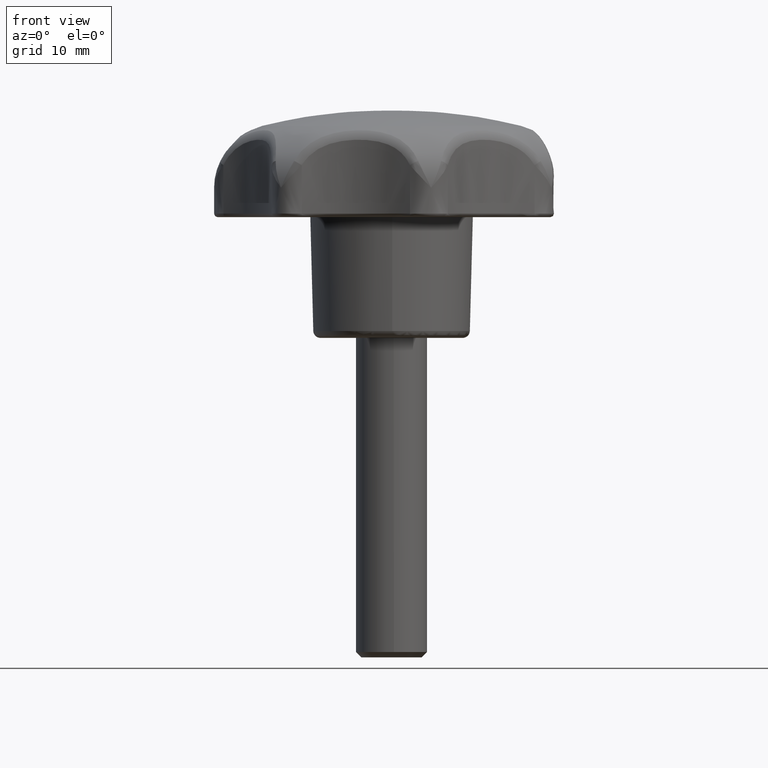
[diagram: clean part render]
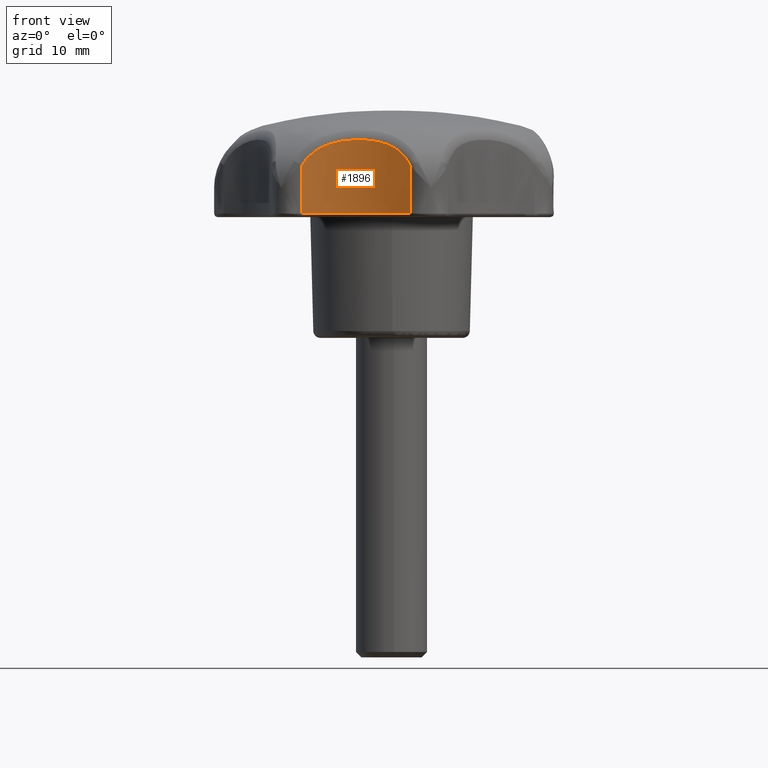
[diagram: same view with one face highlighted and labeled with its STEP entity id]
A machine part, front view. The second image highlights one B-rep face of the part: STEP entity #1896.
In plain terms, the highlighted face is a freeform B-spline surface patch.
Its self-contained STEP definition (entity closure, byte-faithful):
#1359=CARTESIAN_POINT('',(2.601986538722750,-23.697360399521848,17.500000000000000));
#1360=VERTEX_POINT('',#1359);
#1438=CARTESIAN_POINT('',(-12.626206854968320,-20.221624590713802,17.500000000000000));
#1439=VERTEX_POINT('',#1438);
#1466=CARTESIAN_POINT('',(-12.626206854968339,-20.221624590713791,17.500000000000000));
#1467=CARTESIAN_POINT('',(-4.175197073845636,-18.292736733996367,17.499999999999996));
#1468=CARTESIAN_POINT('',(2.601986538722749,-23.697360399521830,17.500000000000000));
#1476=(BOUNDED_CURVE()B_SPLINE_CURVE(2,(#1466,#1467,#1468),.UNSPECIFIED.,.F.,.U.)CURVE()GEOMETRIC_REPRESENTATION_ITEM()QUASI_UNIFORM_CURVE()RATIONAL_B_SPLINE_CURVE((1.0,0.900968865738790,1.0))REPRESENTATION_ITEM(''));
#1477=EDGE_CURVE('',#1439,#1360,#1476,.T.);
#1806=CARTESIAN_POINT('',(3.197564527767768,-24.193672375755064,28.162287431199484));
#1807=CARTESIAN_POINT('',(3.197564527767768,-24.193672375755064,17.233442814220009));
#1808=CARTESIAN_POINT('',(-4.077648753128497,-17.860643864169862,28.162287431199484));
#1809=CARTESIAN_POINT('',(-4.077648753128497,-17.860643864169862,17.233442814220012));
#1810=CARTESIAN_POINT('',(-13.379926049038454,-20.410862584413060,28.162287431199474));
#1811=CARTESIAN_POINT('',(-13.379926049038454,-20.410862584413060,17.233442814220012));
#1819=(BOUNDED_SURFACE()B_SPLINE_SURFACE(1,2,((#1806,#1808,#1810),(#1807,#1809,#1811)),.UNSPECIFIED.,.F.,.F.,.U.)B_SPLINE_SURFACE_WITH_KNOTS((2,2),(3,3),(0.0,10.928844616979470),(0.0,18.075234231265810),.UNSPECIFIED.)GEOMETRIC_REPRESENTATION_ITEM()RATIONAL_B_SPLINE_SURFACE(((0.999857993444966,0.880209342027575,0.997383405088179),(0.999857993444966,0.880209342027575,0.997383405088179)))REPRESENTATION_ITEM('')SURFACE());
#1820=CARTESIAN_POINT('',(2.601986538722750,-23.697360399521848,24.301413324988498));
#1821=VERTEX_POINT('',#1820);
#1822=CARTESIAN_POINT('',(2.601986538722750,-23.697360399521848,24.301413324988498));
#1823=CARTESIAN_POINT('',(2.601986538722750,-23.697360399521848,17.500000000000000));
#1824=QUASI_UNIFORM_CURVE('',1,(#1822,#1823),.UNSPECIFIED.,.F.,.U.);
#1825=EDGE_CURVE('',#1821,#1360,#1824,.T.);
#1826=ORIENTED_EDGE('',*,*,#1825,.F.);
#1827=CARTESIAN_POINT('',(-12.626206854968320,-20.221624590713802,24.301414511253551));
#1828=VERTEX_POINT('',#1827);
#1829=CARTESIAN_POINT('',(2.601986538722780,-23.697360399521848,24.301413324988498));
#1830=CARTESIAN_POINT('',(2.525173305434896,-23.636103889120790,24.470153435246200));
#1831=CARTESIAN_POINT('',(2.441912570885129,-23.570729036469508,24.633567149480658));
#1832=CARTESIAN_POINT('',(2.307094409091785,-23.467051781083470,24.870796667449170));
#1833=CARTESIAN_POINT('',(2.260498246619084,-23.431556083043809,24.948556409714939));
#1834=CARTESIAN_POINT('',(2.163923727335634,-23.358778059641800,25.101441339767220));
#1835=CARTESIAN_POINT('',(2.113863531816334,-23.321436652562909,25.176671656558799));
#1836=CARTESIAN_POINT('',(1.856903055077218,-23.131940820677940,25.543457534657559));
#1837=CARTESIAN_POINT('',(1.628986902787737,-22.970600499436781,25.809008234550610));
#1838=CARTESIAN_POINT('',(1.253461360435123,-22.719711302053440,26.169135892001918));
#1839=CARTESIAN_POINT('',(1.122659926157532,-22.634592282021039,26.282788800130831));
#1840=CARTESIAN_POINT('',(0.917880496015854,-22.505350176507989,26.443988339302020));
#1841=CARTESIAN_POINT('',(0.848119503561027,-22.461965361419161,26.496224503844989));
#1842=CARTESIAN_POINT('',(0.706010390701632,-22.374970911720041,26.597431427344951));
#1843=CARTESIAN_POINT('',(0.634023326539733,-22.331581152457339,26.646151041490661));
#1844=CARTESIAN_POINT('',(0.269529426570453,-22.115409423761850,26.880825521345120));
#1845=CARTESIAN_POINT('',(-0.036619427516632,-21.945004633831090,27.040134313167851));
#1846=CARTESIAN_POINT('',(-0.516149190283915,-21.697165401885659,27.244233358440368));
#1847=CARTESIAN_POINT('',(-0.679383435646572,-21.615837836301260,27.306431155895812));
#1848=CARTESIAN_POINT('',(-0.929180737684443,-21.496204748887401,27.391765265359268));
#1849=CARTESIAN_POINT('',(-1.013271129296481,-21.456719720146818,27.418881794141640));
#1850=CARTESIAN_POINT('',(-1.183081377496806,-21.378602567197021,27.470577729216249));
#1851=CARTESIAN_POINT('',(-1.268943429046346,-21.339908498464620,27.495194135121860));
#1852=CARTESIAN_POINT('',(-1.700223999777679,-21.149634319071449,27.611668764454919));
#1853=CARTESIAN_POINT('',(-2.051279189134882,-21.007707663221250,27.683929884793930));
#1854=CARTESIAN_POINT('',(-2.764584306502059,-20.745380854309129,27.796212785887779));
#1855=CARTESIAN_POINT('',(-3.126834537469450,-20.624974212550459,27.836214436910769));
#1856=CARTESIAN_POINT('',(-3.678330002543448,-20.461125087079591,27.875954507550340));
#1857=CARTESIAN_POINT('',(-3.863519021955770,-20.409301945953100,27.885792274636820));
#1858=CARTESIAN_POINT('',(-4.236614494651360,-20.311350710660339,27.898920995418830));
#1859=CARTESIAN_POINT('',(-4.424678561151737,-20.265186642885290,27.902212271487389));
#1860=CARTESIAN_POINT('',(-4.991997550344561,-20.135643041038481,27.902270118827531));
#1861=CARTESIAN_POINT('',(-5.371118144173472,-20.061925550305610,27.889380645131300));
#1862=CARTESIAN_POINT('',(-6.130971567657094,-19.939210544872211,27.836310002270029));
#1863=CARTESIAN_POINT('',(-6.511705174588911,-19.890217302835040,27.796130300395639));
#1864=CARTESIAN_POINT('',(-7.083632762729550,-19.835062652026611,27.711045649539770));
#1865=CARTESIAN_POINT('',(-7.274829635548976,-19.819718652379080,27.678416942368589));
#1866=CARTESIAN_POINT('',(-7.653818730917052,-19.795318064362519,27.604419463236962));
#1867=CARTESIAN_POINT('',(-7.841909574980833,-19.786219620157649,27.563024031415551));
#1868=CARTESIAN_POINT('',(-8.401532612158528,-19.767792462648810,27.424282541474032));
#1869=CARTESIAN_POINT('',(-8.768445216492294,-19.767344996783631,27.312474511467489));
#1870=CARTESIAN_POINT('',(-9.307295780105552,-19.782524117273748,27.108739200394421));
#1871=CARTESIAN_POINT('',(-9.484985903328521,-19.790222823071250,27.034801706897490));
#1872=CARTESIAN_POINT('',(-9.748271202772683,-19.805455604860249,26.913736025240429));
#1873=CARTESIAN_POINT('',(-9.835490713065308,-19.811147012818090,26.871685660837041));
#1874=CARTESIAN_POINT('',(-10.008776813553530,-19.823707538312899,26.783981533463660));
#1875=CARTESIAN_POINT('',(-10.094675990227170,-19.830567183134530,26.738402486647981));
#1876=CARTESIAN_POINT('',(-10.517472870366291,-19.867310090610630,26.503118351782529));
#1877=CARTESIAN_POINT('',(-10.836973574677270,-19.904718607050409,26.289985973339640));
#1878=CARTESIAN_POINT('',(-11.285655893392700,-19.968037347925460,25.928661143369538));
#1879=CARTESIAN_POINT('',(-11.430113830237531,-19.990343941077089,25.801270434881161));
#1880=CARTESIAN_POINT('',(-11.708250664196520,-20.036525747682081,25.531646219728209));
#1881=CARTESIAN_POINT('',(-11.840189621896130,-20.060109162965990,25.391079987711500));
#1882=CARTESIAN_POINT('',(-12.214129863177959,-20.130809859940712,24.952947321875850));
#1883=CARTESIAN_POINT('',(-12.434746554038130,-20.177925025919471,24.638702942140331));
#1884=CARTESIAN_POINT('',(-12.626206854968339,-20.221624590713802,24.301414511253601));
#1885=B_SPLINE_CURVE_WITH_KNOTS('',3,(#1829,#1830,#1831,#1832,#1833,#1834,#1835,#1836,#1837,#1838,#1839,#1840,#1841,#1842,#1843,#1844,#1845,#1846,#1847,#1848,#1849,#1850,#1851,#1852,#1853,#1854,#1855,#1856,#1857,#1858,#1859,#1860,#1861,#1862,#1863,#1864,#1865,#1866,#1867,#1868,#1869,#1870,#1871,#1872,#1873,#1874,#1875,#1876,#1877,#1878,#1879,#1880,#1881,#1882,#1883,#1884),.UNSPECIFIED.,.F.,.U.,(4,2,2,2,2,2,2,2,2,2,2,2,2,2,2,2,2,2,2,2,2,2,2,2,2,2,2,4),(0.0,0.031250000000001,0.046875000000001,0.062500000000001,0.125000000000002,0.156250000000002,0.171875000000002,0.187500000000002,0.250000000000002,0.281250000000002,0.296875000000002,0.312500000000002,0.375000000000002,0.437500000000001,0.468750000000001,0.500000000000001,0.562500000000001,0.625000000000000,0.656250000000000,0.687500000000000,0.750000000000000,0.781250000000000,0.796875000000000,0.812500000000000,0.875000000000000,0.906250000000000,0.937500000000000,1.0),.UNSPECIFIED.);
#1886=EDGE_CURVE('',#1821,#1828,#1885,.T.);
#1887=ORIENTED_EDGE('',*,*,#1886,.T.);
#1888=CARTESIAN_POINT('',(-12.626206854968320,-20.221624590713802,24.301414511253551));
#1889=CARTESIAN_POINT('',(-12.626206854968320,-20.221624590713802,17.500000000000000));
#1890=QUASI_UNIFORM_CURVE('',1,(#1888,#1889),.UNSPECIFIED.,.F.,.U.);
#1891=EDGE_CURVE('',#1828,#1439,#1890,.T.);
#1892=ORIENTED_EDGE('',*,*,#1891,.T.);
#1893=ORIENTED_EDGE('',*,*,#1477,.T.);
#1894=EDGE_LOOP('',(#1826,#1887,#1892,#1893));
#1895=FACE_OUTER_BOUND('',#1894,.T.);
#1896=ADVANCED_FACE('',(#1895),#1819,.F.);